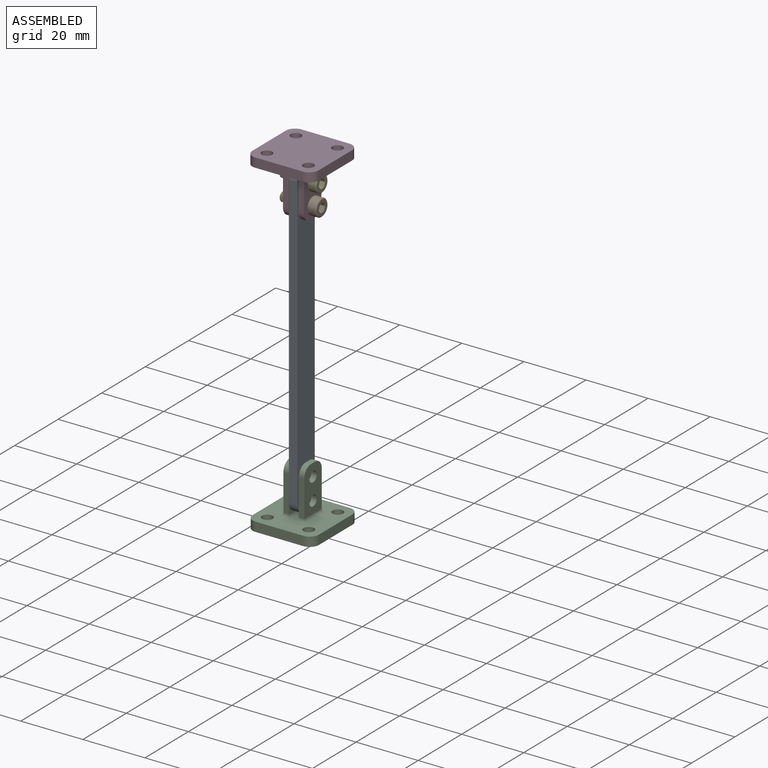
[diagram: assembled view]
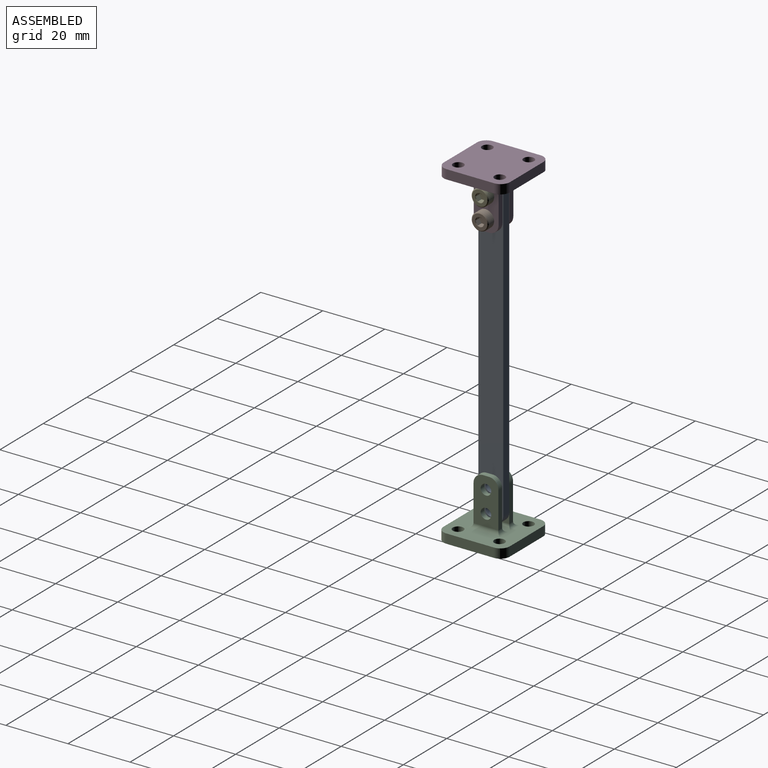
[diagram: assembled view, second angle]
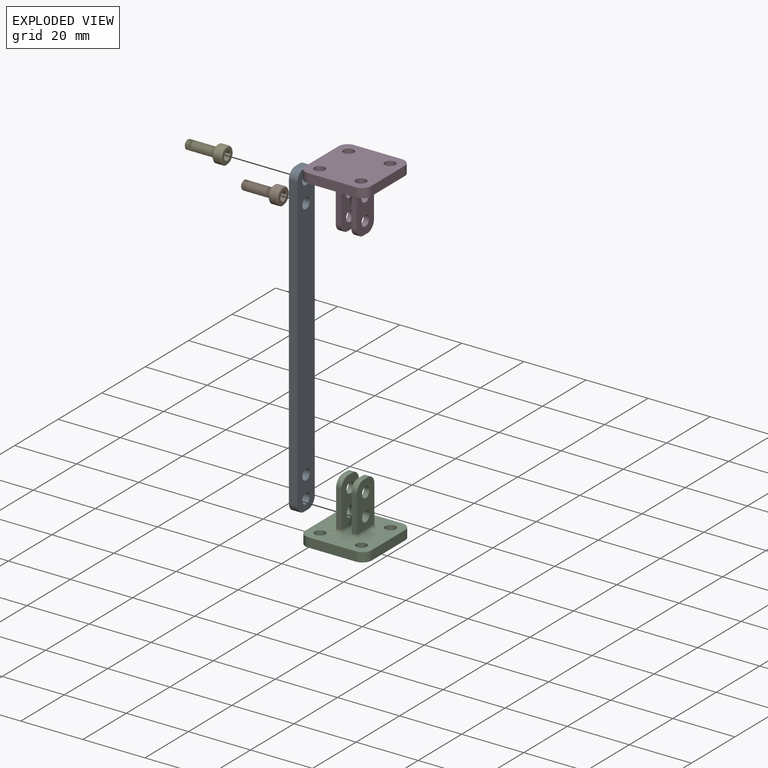
[diagram: exploded view]
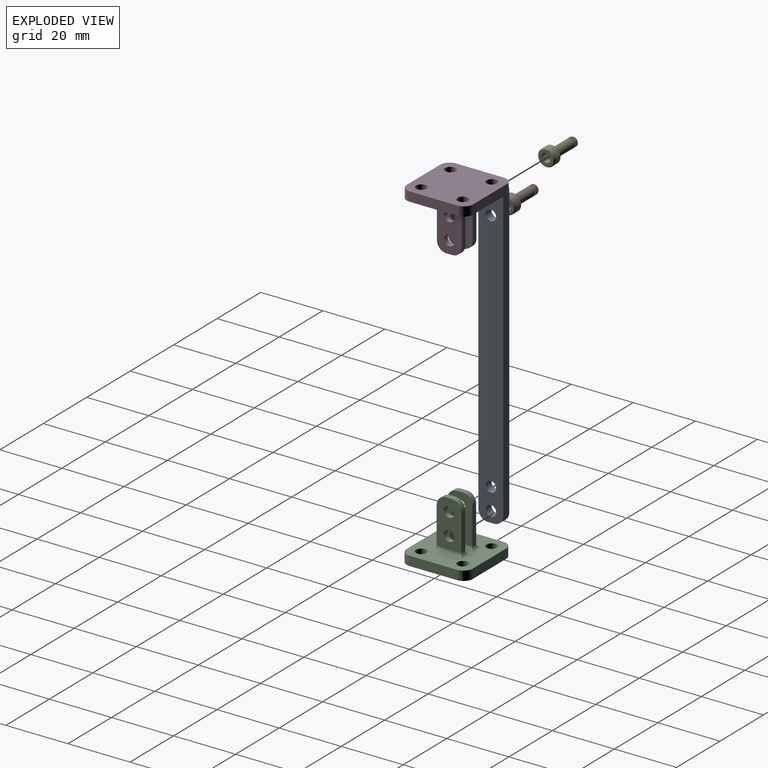
[diagram: exploded view, second angle]
ASSEMBLY  parts=5 mates=7
PART A: 14 faces, bbox 100x8x2.8 mm
  f0: plane 2.75x2mm, normal (1,0,0), area 5.5mm2, adj f8,f9,f10,f13
  f1: plane 94x2.75mm, normal (0,1,0), area 258.5mm2, adj f8,f9,f10,f11
  f2: plane 2.75x2mm, normal (-1,0,0), area 5.5mm2, adj f8,f9,f11,f12
  f3: cylinder r=1.7mm len=3.4mm, axis (0,0,-1), area 29.4mm2, adj f8,f9
  f4: cylinder r=1.7mm len=3.4mm, axis (0,0,-1), area 29.4mm2, adj f8,f9
  f5: cylinder r=1.7mm len=3.4mm, axis (0,0,-1), area 29.4mm2, adj f8,f9
  f6: cylinder r=1.7mm len=3.4mm, axis (0,0,-1), area 29.4mm2, adj f8,f9
  f7: plane 94x2.75mm, normal (0,-1,0), area 258.5mm2, adj f8,f9,f12,f13
  f8: plane 100x8mm, normal (0,0,1), area 756mm2, adj f0,f1,f2,f3,f4,f5,f6,f7
  f9: plane 100x8mm, normal (0,0,-1), area 756mm2, adj f0,f1,f2,f3,f4,f5,f6,f7
  f10: cylinder r=3mm len=3mm, axis (0,0,-1), area 13mm2, adj f0,f1,f8,f9
  f11: cylinder r=3mm len=3mm, axis (0,0,1), area 13mm2, adj f1,f2,f8,f9
  f12: cylinder r=3mm len=3mm, axis (0,0,-1), area 13mm2, adj f2,f7,f8,f9
  f13: cylinder r=3mm len=3mm, axis (0,0,1), area 13mm2, adj f0,f7,f8,f9
PART B: 25 faces, bbox 6x6x13.6 mm
  f0: cylinder r=1.5mm len=9.59mm, axis (0,0,1), area 0.4mm2, adj f1,f2,f4,f5,f9
  f1: bspline ~10.27x3.46mm, area 60.8mm2, adj f0,f3,f4,f9
  f2: bspline ~10.1x3.46mm, area 61.5mm2, adj f0,f3,f5,f9
  f3: cylinder r=1.18mm len=9.82mm, axis (0,0,-1), area -12.4mm2, adj f1,f2,f4,f9
  f4: cone r=0.92mm half-angle=55deg, axis (0,0,-1), area 3.5mm2, adj f0,f1,f3,f5,f6
  f5: cone r=0.92mm half-angle=55deg, axis (0,0,-1), area 0.1mm2, adj f0,f2,f4
  f6: plane 1.84x1.84mm, normal (0,0,1), area 2.7mm2, adj f4
  f7: cylinder r=2.75mm len=5.5mm, axis (0,0,1), area 42.3mm2, adj f23,f24
  f8: plane 4.95x4.95mm, normal (0,0,-1), area 12.7mm2, adj f10,f11,f12,f13,f14,f15,f23
  f9: plane 5.15x5.15mm, normal (0,0,1), area 13.6mm2, adj f0,f1,f2,f3,f24
  f10: cone r=1.44mm half-angle=45deg, axis (0,0,-1), area 0mm2, adj f8,f17
  f11: cone r=1.44mm half-angle=45deg, axis (0,0,-1), area 0mm2, adj f8,f18
  f12: cone r=1.44mm half-angle=45deg, axis (0,0,-1), area 0mm2, adj f8,f19
  f13: cone r=1.44mm half-angle=45deg, axis (0,0,-1), area 0mm2, adj f8,f20
  f14: cone r=1.44mm half-angle=45deg, axis (0,0,-1), area 0mm2, adj f8,f21
  f15: cone r=1.44mm half-angle=45deg, axis (0,0,-1), area 0mm2, adj f8,f22
  f16: plane 2.89x2.5mm, normal (0,0,-1), area 5.4mm2, adj f17,f18,f19,f20,f21,f22
  f17: plane 2.42x1.8mm, normal (-0.5,-0.87,0), area 2.5mm2, adj f10,f16,f18,f22
  f18: plane 2.42x1.99mm, normal (-1,0,0), area 2.5mm2, adj f11,f16,f17,f19
  f19: plane 2.42x1.8mm, normal (-0.5,0.87,0), area 2.5mm2, adj f12,f16,f18,f20
  f20: plane 2.42x1.8mm, normal (0.5,0.87,0), area 2.5mm2, adj f13,f16,f19,f21
  f21: plane 2.42x1.99mm, normal (1,0,0), area 2.5mm2, adj f14,f16,f20,f22
  f22: plane 2.42x1.8mm, normal (0.5,-0.87,0), area 2.5mm2, adj f15,f16,f17,f21
  f23: cone r=2.48mm half-angle=45deg, axis (0,0,1), area 6.4mm2, adj f7,f8
  f24: cone r=2.75mm half-angle=45deg, axis (0,0,-1), area 6.4mm2, adj f7,f9
PART C: 40 faces, bbox 21.4x21.4x19 mm
  f0: plane 21.35x21.35mm, normal (0,0,1), area 322.5mm2, adj f1,f2,f3,f4,f5,f6,f7,f8
  f1: plane 15.35x3mm, normal (0,1,0), area 46mm2, adj f0,f9,f10,f13
  f2: plane 15.35x3mm, normal (-1,0,0), area 46mm2, adj f0,f9,f12,f13
  f3: plane 15.35x3mm, normal (0,-1,0), area 46mm2, adj f0,f9,f11,f12
  f4: cylinder r=1.7mm len=3.4mm, axis (0,0,-1), area 32mm2, adj f0,f9
  f5: cylinder r=1.7mm len=3.4mm, axis (0,0,-1), area 32mm2, adj f0,f9
  f6: cylinder r=1.7mm len=3.4mm, axis (0,0,-1), area 32mm2, adj f0,f9
  f7: plane 15.35x3mm, normal (1,0,0), area 46mm2, adj f0,f9,f10,f11
  f8: cylinder r=1.7mm len=3.4mm, axis (0,0,-1), area 32mm2, adj f0,f9
  f9: plane 21.35x21.35mm, normal (0,0,-1), area 411.8mm2, adj f1,f2,f3,f4,f5,f6,f7,f8
  f10: cylinder r=3mm len=3mm, axis (0,0,1), area 14.1mm2, adj f0,f1,f7,f9
  f11: cylinder r=3mm len=3mm, axis (0,0,-1), area 14.1mm2, adj f0,f3,f7,f9
  f12: cylinder r=3mm len=3mm, axis (0,0,1), area 14.1mm2, adj f0,f2,f3,f9
  f13: cylinder r=3mm len=3mm, axis (0,0,-1), area 14.1mm2, adj f0,f1,f2,f9
  f14: plane 11.75x1.75mm, normal (0,1,0), area 20.6mm2, adj f15,f17,f28,f37
  f15: plane 14.75x8mm, normal (-1,0,0), area 96mm2, adj f14,f16,f18,f26,f27,f29,f36,f37
  f16: plane 11.75x1.75mm, normal (0,-1,0), area 20.6mm2, adj f15,f17,f31,f36
  f17: plane 14.75x8mm, normal (1,0,0), area 96mm2, adj f14,f16,f18,f26,f27,f30,f36,f37
  f18: plane 2x1.75mm, normal (0,0,1), area 3.5mm2, adj f15,f17,f36,f37
  f19: plane 11.75x1.75mm, normal (0,1,0), area 20.6mm2, adj f20,f22,f33,f39
  f20: plane 14.75x8mm, normal (-1,0,0), area 96mm2, adj f19,f21,f23,f24,f25,f35,f38,f39
  f21: plane 11.75x1.75mm, normal (0,-1,0), area 20.6mm2, adj f20,f22,f34,f38
  f22: plane 14.75x8mm, normal (1,0,0), area 96mm2, adj f19,f21,f23,f24,f25,f32,f38,f39
  f23: plane 2x1.75mm, normal (0,0,1), area 3.5mm2, adj f20,f22,f38,f39
  f24: cylinder r=1.7mm len=3.4mm, axis (-1,0,0), area 18.7mm2, adj f20,f22
  f25: cylinder r=1.7mm len=3.4mm, axis (-1,0,0), area 18.7mm2, adj f20,f22
  f26: cylinder r=1.7mm len=3.4mm, axis (-1,0,0), area 18.7mm2, adj f15,f17
  f27: cylinder r=1.7mm len=3.4mm, axis (-1,0,0), area 18.7mm2, adj f15,f17
  f28: cylinder r=1.25mm len=4.25mm, axis (-1,0,0), area 5.2mm2, adj f0,f14,f29,f30
  f29: cylinder r=1.25mm len=10.5mm, axis (0,-1,0), area 17.5mm2, adj f0,f15,f28,f31
  f30: cylinder r=1.25mm len=10.5mm, axis (0,1,0), area 17.5mm2, adj f0,f17,f28,f31
  f31: cylinder r=1.25mm len=4.25mm, axis (1,0,0), area 5.2mm2, adj f0,f16,f29,f30
  f32: cylinder r=1.25mm len=10.5mm, axis (0,1,0), area 17.5mm2, adj f0,f22,f33,f34
  f33: cylinder r=1.25mm len=4.25mm, axis (-1,0,0), area 5.2mm2, adj f0,f19,f32,f35
  f34: cylinder r=1.25mm len=4.25mm, axis (1,0,0), area 5.2mm2, adj f0,f21,f32,f35
  f35: cylinder r=1.25mm len=10.5mm, axis (0,-1,0), area 17.5mm2, adj f0,f20,f33,f34
  f36: cylinder r=3mm len=3mm, axis (-1,0,0), area 8.2mm2, adj f15,f16,f17,f18
  f37: cylinder r=3mm len=3mm, axis (1,0,0), area 8.2mm2, adj f14,f15,f17,f18
  f38: cylinder r=3mm len=3mm, axis (-1,0,0), area 8.2mm2, adj f20,f21,f22,f23
  f39: cylinder r=3mm len=3mm, axis (1,0,0), area 8.2mm2, adj f19,f20,f22,f23
PART D: same geometry as C
PART E: same geometry as B
PLACE A rot(axis=(-0.71,0,-0.71),180deg) t=(-8.83,-0.07,-7.54)mm
PLACE B rot(axis=(0.71,0,-0.71),180deg) t=(-13.93,-0.07,31.96)mm
PLACE C t=(-7.2,-0.07,-62.04)mm
PLACE D rot(axis=(1,0,0),180deg) t=(-7.33,-0.07,46.96)mm
PLACE E rot(axis=(0,-1,0),90deg) t=(-13.93,-0.07,38.96)mm
MATE planar A.f9 <-> C.f22  axis (-1,0,0) through (-8.83,-0.07,-7.54)mm
MATE cylindrical B.f0 <-> D.f25  axis (1,0,0) through (-1.21,-0.07,31.96)mm
MATE planar E.f0 <-> B.f8  axis (1,0,0) through (-0.93,-0.07,38.96)mm
MATE cylindrical D.f24 <-> A.f4  axis (1,0,0) through (-3.95,-0.07,38.96)mm
MATE cylindrical A.f6 <-> C.f24  axis (1,0,0) through (-6.08,-0.07,-54.04)mm
MATE cylindrical C.f25 <-> A.f5  axis (1,0,0) through (-3.83,-0.07,-47.04)mm
MATE cylindrical E.f0 <-> D.f24  axis (1,0,0) through (-1.21,-0.07,38.96)mm
